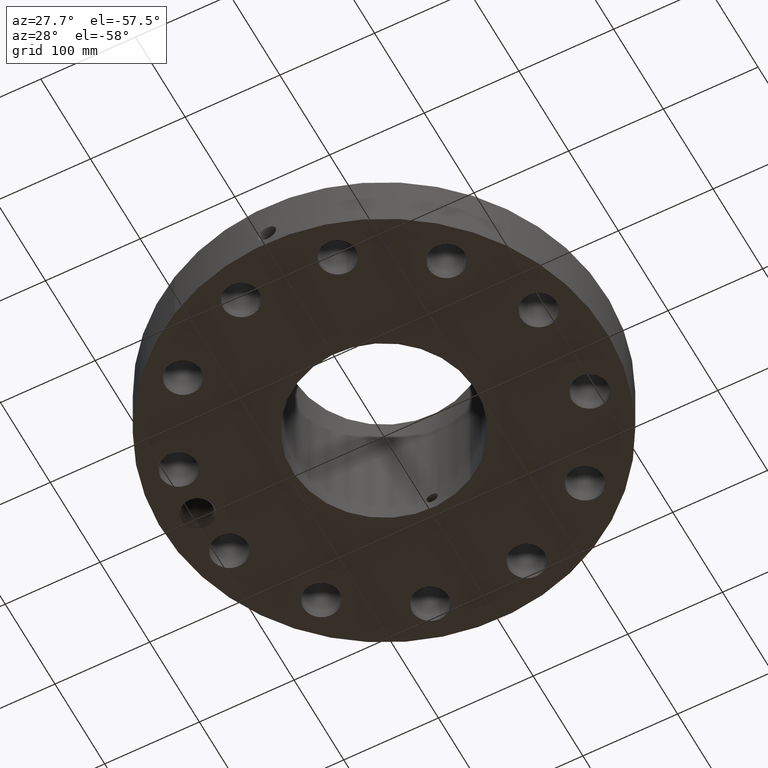
[diagram: clean part render]
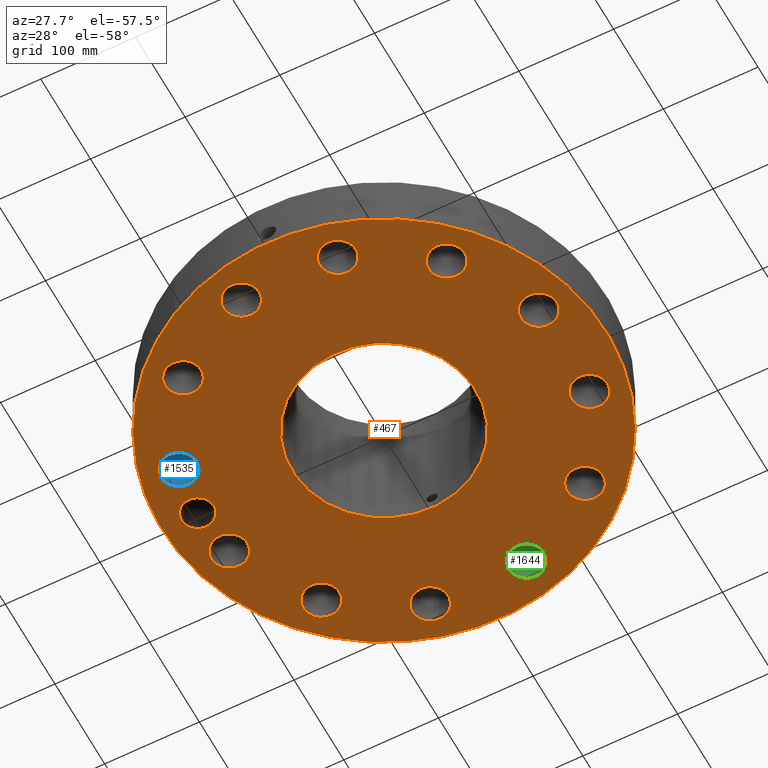
[diagram: same view with three faces highlighted in distinct colors, each labeled with its STEP entity id]
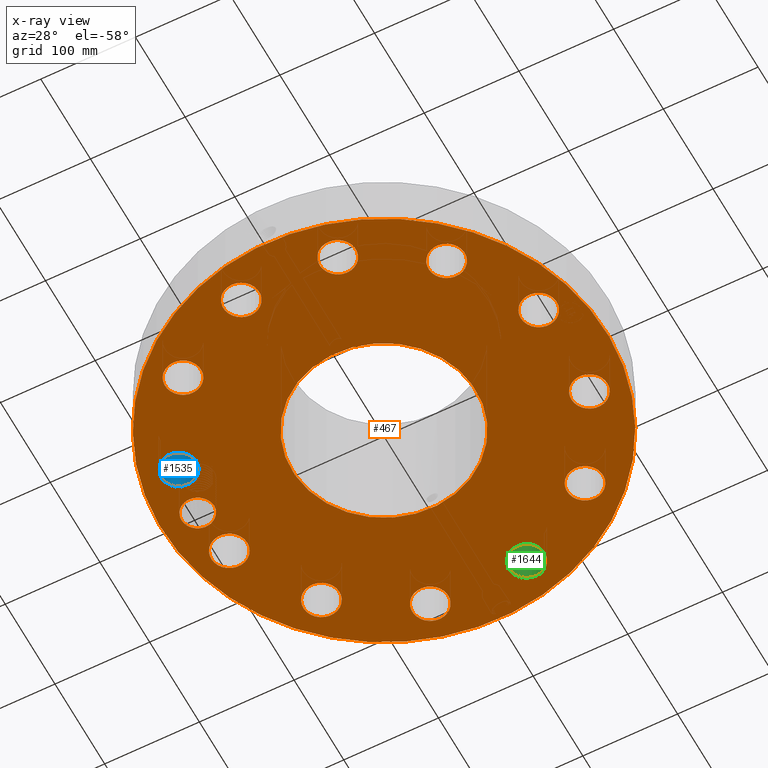
[diagram: x-ray of the same camera — body ghosted, the three highlighted faces saturated]
A machine part, auxiliary view with three faces highlighted in distinct colors.
The next image is the same camera in x-ray (body ghosted, the three faces saturated) — at least one of them is partly hidden behind the body in this view.
Their STEP definitions:

[orange] entity #467 — the highlighted planar face has unit normal (0, 0, -1).
#42=AXIS2_PLACEMENT_3D('Circle Axis2P3D',#40,#41,$) ;
#165=AXIS2_PLACEMENT_3D('Plane Axis2P3D',#162,#163,#164) ;
#169=AXIS2_PLACEMENT_3D('Circle Axis2P3D',#167,#168,$) ;
#178=AXIS2_PLACEMENT_3D('Circle Axis2P3D',#176,#177,$) ;
#187=AXIS2_PLACEMENT_3D('Circle Axis2P3D',#185,#186,$) ;
#235=AXIS2_PLACEMENT_3D('Circle Axis2P3D',#233,#234,$) ;
#244=AXIS2_PLACEMENT_3D('Circle Axis2P3D',#242,#243,$) ;
#253=AXIS2_PLACEMENT_3D('Circle Axis2P3D',#251,#252,$) ;
#262=AXIS2_PLACEMENT_3D('Circle Axis2P3D',#260,#261,$) ;
#271=AXIS2_PLACEMENT_3D('Circle Axis2P3D',#269,#270,$) ;
#280=AXIS2_PLACEMENT_3D('Circle Axis2P3D',#278,#279,$) ;
#289=AXIS2_PLACEMENT_3D('Circle Axis2P3D',#287,#288,$) ;
#298=AXIS2_PLACEMENT_3D('Circle Axis2P3D',#296,#297,$) ;
#307=AXIS2_PLACEMENT_3D('Circle Axis2P3D',#305,#306,$) ;
#316=AXIS2_PLACEMENT_3D('Circle Axis2P3D',#314,#315,$) ;
#325=AXIS2_PLACEMENT_3D('Circle Axis2P3D',#323,#324,$) ;
#334=AXIS2_PLACEMENT_3D('Circle Axis2P3D',#332,#333,$) ;
#343=AXIS2_PLACEMENT_3D('Circle Axis2P3D',#341,#342,$) ;
#352=AXIS2_PLACEMENT_3D('Circle Axis2P3D',#350,#351,$) ;
#361=AXIS2_PLACEMENT_3D('Circle Axis2P3D',#359,#360,$) ;
#370=AXIS2_PLACEMENT_3D('Circle Axis2P3D',#368,#369,$) ;
#379=AXIS2_PLACEMENT_3D('Circle Axis2P3D',#377,#378,$) ;
#388=AXIS2_PLACEMENT_3D('Circle Axis2P3D',#386,#387,$) ;
#397=AXIS2_PLACEMENT_3D('Circle Axis2P3D',#395,#396,$) ;
#406=AXIS2_PLACEMENT_3D('Circle Axis2P3D',#404,#405,$) ;
#415=AXIS2_PLACEMENT_3D('Circle Axis2P3D',#413,#414,$) ;
#424=AXIS2_PLACEMENT_3D('Circle Axis2P3D',#422,#423,$) ;
#433=AXIS2_PLACEMENT_3D('Circle Axis2P3D',#431,#432,$) ;
#442=AXIS2_PLACEMENT_3D('Circle Axis2P3D',#440,#441,$) ;
#451=AXIS2_PLACEMENT_3D('Circle Axis2P3D',#449,#450,$) ;
#460=AXIS2_PLACEMENT_3D('Circle Axis2P3D',#458,#459,$) ;
#40=CARTESIAN_POINT('Axis2P3D Location',(0.,0.,0.250000000001)) ;
#44=CARTESIAN_POINT('Vertex',(-4.43468623211,-8.11763869752,0.250000000001)) ;
#46=CARTESIAN_POINT('Vertex',(4.43468623211,8.11763869752,0.250000000001)) ;
#162=CARTESIAN_POINT('Axis2P3D Location',(0.,3.81250000002,0.250000000001)) ;
#167=CARTESIAN_POINT('Axis2P3D Location',(0.,0.,0.250000000001)) ;
#176=CARTESIAN_POINT('Axis2P3D Location',(-7.75000000003,5.59482469102E-016,0.250000000001)) ;
#180=CARTESIAN_POINT('Vertex',(-8.33745376696,0.320927455543,0.250000000001)) ;
#182=CARTESIAN_POINT('Vertex',(-7.25451620551,0.450102398757,0.250000000001)) ;
#185=CARTESIAN_POINT('Axis2P3D Location',(-7.75000000003,5.59482469102E-016,0.250000000001)) ;
#189=CARTESIAN_POINT('Vertex',(-7.23799837166,-0.431220004808,0.250000000001)) ;
#193=CARTESIAN_POINT('Control Point',(-7.0629754839,-2.07468947638E-005,0.250000000001)) ;
#194=CARTESIAN_POINT('Control Point',(-7.06534198668,-0.0645113013499,0.250000000001)) ;
#195=CARTESIAN_POINT('Control Point',(-7.07528094478,-0.128593476968,0.250000000001)) ;
#196=CARTESIAN_POINT('Control Point',(-7.09272137331,-0.191047595332,0.250000000001)) ;
#197=CARTESIAN_POINT('Control Point',(-7.12917142241,-0.279490456008,0.250000000001)) ;
#198=CARTESIAN_POINT('Control Point',(-7.17998374721,-0.359518001057,0.250000000001)) ;
#199=CARTESIAN_POINT('Control Point',(-7.19798053399,-0.38456504746,0.250000000001)) ;
#200=CARTESIAN_POINT('Control Point',(-7.21734968685,-0.408498034827,0.250000000001)) ;
#201=CARTESIAN_POINT('Control Point',(-7.23799837166,-0.431220004808,0.250000000001)) ;
#202=CARTESIAN_POINT('Vertex',(-7.0629754839,-2.07468947634E-005,0.250000000001)) ;
#206=CARTESIAN_POINT('Control Point',(-7.0626220832,0.0129557094812,0.250000000001)) ;
#207=CARTESIAN_POINT('Control Point',(-7.06266824443,0.0103594296756,0.250000000001)) ;
#208=CARTESIAN_POINT('Control Point',(-7.06272666754,0.00776357627205,0.250000000001)) ;
#209=CARTESIAN_POINT('Control Point',(-7.06279735309,0.00516812512151,0.250000000001)) ;
#210=CARTESIAN_POINT('Control Point',(-7.06288029232,0.00257335876411,0.250000000001)) ;
#211=CARTESIAN_POINT('Control Point',(-7.0629754839,-2.07468947638E-005,0.250000000001)) ;
#212=CARTESIAN_POINT('Vertex',(-7.0626220832,0.0129557094812,0.250000000001)) ;
#216=CARTESIAN_POINT('Control Point',(-7.0626220832,0.0129557094812,0.250000000001)) ;
#217=CARTESIAN_POINT('Control Point',(-7.06620016695,0.077395398012,0.250000000001)) ;
#218=CARTESIAN_POINT('Control Point',(-7.07733742913,0.141283565138,0.250000000001)) ;
#219=CARTESIAN_POINT('Control Point',(-7.09595064586,0.203427894509,0.250000000001)) ;
#220=CARTESIAN_POINT('Control Point',(-7.13507873247,0.29355834408,0.250000000001)) ;
#221=CARTESIAN_POINT('Control Point',(-7.18921326546,0.374580219394,0.250000000001)) ;
#222=CARTESIAN_POINT('Control Point',(-7.2094508816,0.401144477602,0.250000000001)) ;
#223=CARTESIAN_POINT('Control Point',(-7.23125899334,0.426358633925,0.250000000001)) ;
#224=CARTESIAN_POINT('Control Point',(-7.25451620551,0.450102398757,0.250000000001)) ;
#233=CARTESIAN_POINT('Axis2P3D Location',(7.48592515377,-2.00584759955,0.250000000001)) ;
#237=CARTESIAN_POINT('Vertex',(8.14411207519,-2.36541675351,0.250000000001)) ;
#239=CARTESIAN_POINT('Vertex',(6.82773823235,-1.6462784456,0.250000000001)) ;
#242=CARTESIAN_POINT('Axis2P3D Location',(7.48592515377,-2.00584759955,0.250000000001)) ;
#251=CARTESIAN_POINT('Axis2P3D Location',(0.,0.,0.250000000001)) ;
#255=CARTESIAN_POINT('Vertex',(1.82780986594,3.34578351722,0.250000000001)) ;
#257=CARTESIAN_POINT('Vertex',(-1.82780986594,-3.34578351722,0.250000000001)) ;
#260=CARTESIAN_POINT('Axis2P3D Location',(0.,0.,0.250000000001)) ;
#269=CARTESIAN_POINT('Axis2P3D Location',(5.48007755422,-5.48007755422,0.250000000001)) ;
#273=CARTESIAN_POINT('Vertex',(5.08985553681,-4.83958807177,0.250000000001)) ;
#275=CARTESIAN_POINT('Vertex',(5.87029957163,-6.12056703667,0.250000000001)) ;
#278=CARTESIAN_POINT('Axis2P3D Location',(5.48007755422,-5.48007755422,0.250000000001)) ;
#287=CARTESIAN_POINT('Axis2P3D Location',(2.00584759955,-7.48592515377,0.250000000001)) ;
#291=CARTESIAN_POINT('Vertex',(1.98815016058,-6.7361339824,0.250000000001)) ;
#293=CARTESIAN_POINT('Vertex',(2.02354503852,-8.23571632514,0.250000000001)) ;
#296=CARTESIAN_POINT('Axis2P3D Location',(2.00584759955,-7.48592515377,0.250000000001)) ;
#305=CARTESIAN_POINT('Axis2P3D Location',(-2.00584759955,-7.48592515377,0.250000000001)) ;
#309=CARTESIAN_POINT('Vertex',(-1.6462784456,-6.82773823235,0.250000000001)) ;
#311=CARTESIAN_POINT('Vertex',(-2.36541675351,-8.14411207519,0.250000000001)) ;
#314=CARTESIAN_POINT('Axis2P3D Location',(-2.00584759955,-7.48592515377,0.250000000001)) ;
#323=CARTESIAN_POINT('Axis2P3D Location',(-5.48007755422,-5.48007755422,0.250000000001)) ;
#327=CARTESIAN_POINT('Vertex',(-4.83958807177,-5.08985553681,0.250000000001)) ;
#329=CARTESIAN_POINT('Vertex',(-6.12056703667,-5.87029957163,0.250000000001)) ;
#332=CARTESIAN_POINT('Axis2P3D Location',(-5.48007755422,-5.48007755422,0.250000000001)) ;
#341=CARTESIAN_POINT('Axis2P3D Location',(-7.48592515377,-2.00584759955,0.250000000001)) ;
#345=CARTESIAN_POINT('Vertex',(-6.7361339824,-1.98815016058,0.250000000001)) ;
#347=CARTESIAN_POINT('Vertex',(-8.23571632514,-2.02354503852,0.250000000001)) ;
#350=CARTESIAN_POINT('Axis2P3D Location',(-7.48592515377,-2.00584759955,0.250000000001)) ;
#359=CARTESIAN_POINT('Axis2P3D Location',(-7.48592515377,2.00584759955,0.250000000001)) ;
#363=CARTESIAN_POINT('Vertex',(-6.82773823235,1.6462784456,0.250000000001)) ;
#365=CARTESIAN_POINT('Vertex',(-8.14411207519,2.36541675351,0.250000000001)) ;
#368=CARTESIAN_POINT('Axis2P3D Location',(-7.48592515377,2.00584759955,0.250000000001)) ;
#377=CARTESIAN_POINT('Axis2P3D Location',(-5.48007755422,5.48007755422,0.250000000001)) ;
#381=CARTESIAN_POINT('Vertex',(-5.08985553681,4.83958807177,0.250000000001)) ;
#383=CARTESIAN_POINT('Vertex',(-5.87029957163,6.12056703667,0.250000000001)) ;
#386=CARTESIAN_POINT('Axis2P3D Location',(-5.48007755422,5.48007755422,0.250000000001)) ;
#395=CARTESIAN_POINT('Axis2P3D Location',(-2.00584759955,7.48592515377,0.250000000001)) ;
#399=CARTESIAN_POINT('Vertex',(-1.98815016058,6.7361339824,0.250000000001)) ;
#401=CARTESIAN_POINT('Vertex',(-2.02354503852,8.23571632514,0.250000000001)) ;
#404=CARTESIAN_POINT('Axis2P3D Location',(-2.00584759955,7.48592515377,0.250000000001)) ;
#413=CARTESIAN_POINT('Axis2P3D Location',(2.00584759955,7.48592515377,0.250000000001)) ;
#417=CARTESIAN_POINT('Vertex',(1.6462784456,6.82773823235,0.250000000001)) ;
#419=CARTESIAN_POINT('Vertex',(2.36541675351,8.14411207519,0.250000000001)) ;
#422=CARTESIAN_POINT('Axis2P3D Location',(2.00584759955,7.48592515377,0.250000000001)) ;
#431=CARTESIAN_POINT('Axis2P3D Location',(5.48007755422,5.48007755422,0.250000000001)) ;
#435=CARTESIAN_POINT('Vertex',(4.83958807177,5.08985553681,0.250000000001)) ;
#437=CARTESIAN_POINT('Vertex',(6.12056703667,5.87029957163,0.250000000001)) ;
#440=CARTESIAN_POINT('Axis2P3D Location',(5.48007755422,5.48007755422,0.250000000001)) ;
#449=CARTESIAN_POINT('Axis2P3D Location',(7.48592515377,2.00584759955,0.250000000001)) ;
#453=CARTESIAN_POINT('Vertex',(6.7361339824,1.98815016058,0.250000000001)) ;
#455=CARTESIAN_POINT('Vertex',(8.23571632514,2.02354503852,0.250000000001)) ;
#458=CARTESIAN_POINT('Axis2P3D Location',(7.48592515377,2.00584759955,0.250000000001)) ;
#41=DIRECTION('Axis2P3D Direction',(0.,0.,-0.0393700787402)) ;
#163=DIRECTION('Axis2P3D Direction',(0.,0.,-0.0393700787402)) ;
#164=DIRECTION('Axis2P3D XDirection',(0.0393700787402,0.,0.)) ;
#168=DIRECTION('Axis2P3D Direction',(0.,0.,-0.0393700787402)) ;
#177=DIRECTION('Axis2P3D Direction',(0.,0.,-0.0393700787402)) ;
#186=DIRECTION('Axis2P3D Direction',(0.,0.,-0.0393700787402)) ;
#234=DIRECTION('Axis2P3D Direction',(0.,0.,-0.0393700787402)) ;
#243=DIRECTION('Axis2P3D Direction',(0.,0.,-0.0393700787402)) ;
#252=DIRECTION('Axis2P3D Direction',(0.,0.,-0.0393700787402)) ;
#261=DIRECTION('Axis2P3D Direction',(0.,0.,-0.0393700787402)) ;
#270=DIRECTION('Axis2P3D Direction',(0.,0.,-0.0393700787402)) ;
#279=DIRECTION('Axis2P3D Direction',(0.,0.,-0.0393700787402)) ;
#288=DIRECTION('Axis2P3D Direction',(0.,0.,-0.0393700787402)) ;
#297=DIRECTION('Axis2P3D Direction',(0.,0.,-0.0393700787402)) ;
#306=DIRECTION('Axis2P3D Direction',(0.,0.,-0.0393700787402)) ;
#315=DIRECTION('Axis2P3D Direction',(0.,0.,-0.0393700787402)) ;
#324=DIRECTION('Axis2P3D Direction',(0.,0.,-0.0393700787402)) ;
#333=DIRECTION('Axis2P3D Direction',(0.,0.,-0.0393700787402)) ;
#342=DIRECTION('Axis2P3D Direction',(0.,0.,-0.0393700787402)) ;
#351=DIRECTION('Axis2P3D Direction',(0.,0.,-0.0393700787402)) ;
#360=DIRECTION('Axis2P3D Direction',(0.,0.,-0.0393700787402)) ;
#369=DIRECTION('Axis2P3D Direction',(0.,0.,-0.0393700787402)) ;
#378=DIRECTION('Axis2P3D Direction',(0.,0.,-0.0393700787402)) ;
#387=DIRECTION('Axis2P3D Direction',(0.,0.,-0.0393700787402)) ;
#396=DIRECTION('Axis2P3D Direction',(0.,0.,-0.0393700787402)) ;
#405=DIRECTION('Axis2P3D Direction',(0.,0.,-0.0393700787402)) ;
#414=DIRECTION('Axis2P3D Direction',(0.,0.,-0.0393700787402)) ;
#423=DIRECTION('Axis2P3D Direction',(0.,0.,-0.0393700787402)) ;
#432=DIRECTION('Axis2P3D Direction',(0.,0.,-0.0393700787402)) ;
#441=DIRECTION('Axis2P3D Direction',(0.,0.,-0.0393700787402)) ;
#450=DIRECTION('Axis2P3D Direction',(0.,0.,-0.0393700787402)) ;
#459=DIRECTION('Axis2P3D Direction',(0.,0.,-0.0393700787402)) ;
#173=ORIENTED_EDGE('',*,*,#48,.T.) ;
#174=ORIENTED_EDGE('',*,*,#171,.T.) ;
#227=ORIENTED_EDGE('',*,*,#184,.F.) ;
#228=ORIENTED_EDGE('',*,*,#191,.F.) ;
#229=ORIENTED_EDGE('',*,*,#204,.F.) ;
#230=ORIENTED_EDGE('',*,*,#214,.F.) ;
#231=ORIENTED_EDGE('',*,*,#225,.T.) ;
#248=ORIENTED_EDGE('',*,*,#241,.F.) ;
#249=ORIENTED_EDGE('',*,*,#246,.F.) ;
#266=ORIENTED_EDGE('',*,*,#259,.F.) ;
#267=ORIENTED_EDGE('',*,*,#264,.F.) ;
#284=ORIENTED_EDGE('',*,*,#277,.F.) ;
#285=ORIENTED_EDGE('',*,*,#282,.F.) ;
#302=ORIENTED_EDGE('',*,*,#295,.F.) ;
#303=ORIENTED_EDGE('',*,*,#300,.F.) ;
#320=ORIENTED_EDGE('',*,*,#313,.F.) ;
#321=ORIENTED_EDGE('',*,*,#318,.F.) ;
#338=ORIENTED_EDGE('',*,*,#331,.F.) ;
#339=ORIENTED_EDGE('',*,*,#336,.F.) ;
#356=ORIENTED_EDGE('',*,*,#349,.F.) ;
#357=ORIENTED_EDGE('',*,*,#354,.F.) ;
#374=ORIENTED_EDGE('',*,*,#367,.F.) ;
#375=ORIENTED_EDGE('',*,*,#372,.F.) ;
#392=ORIENTED_EDGE('',*,*,#385,.F.) ;
#393=ORIENTED_EDGE('',*,*,#390,.F.) ;
#410=ORIENTED_EDGE('',*,*,#403,.F.) ;
#411=ORIENTED_EDGE('',*,*,#408,.F.) ;
#428=ORIENTED_EDGE('',*,*,#421,.F.) ;
#429=ORIENTED_EDGE('',*,*,#426,.F.) ;
#446=ORIENTED_EDGE('',*,*,#439,.F.) ;
#447=ORIENTED_EDGE('',*,*,#444,.F.) ;
#464=ORIENTED_EDGE('',*,*,#457,.F.) ;
#465=ORIENTED_EDGE('',*,*,#462,.F.) ;
#232=FACE_BOUND('',#226,.T.) ;
#250=FACE_BOUND('',#247,.T.) ;
#268=FACE_BOUND('',#265,.T.) ;
#286=FACE_BOUND('',#283,.T.) ;
#304=FACE_BOUND('',#301,.T.) ;
#322=FACE_BOUND('',#319,.T.) ;
#340=FACE_BOUND('',#337,.T.) ;
#358=FACE_BOUND('',#355,.T.) ;
#376=FACE_BOUND('',#373,.T.) ;
#394=FACE_BOUND('',#391,.T.) ;
#412=FACE_BOUND('',#409,.T.) ;
#430=FACE_BOUND('',#427,.T.) ;
#448=FACE_BOUND('',#445,.T.) ;
#466=FACE_BOUND('',#463,.T.) ;
#467=ADVANCED_FACE('PartBody',(#175,#232,#250,#268,#286,#304,#322,#340,#358,#376,#394,#412,#430,#448,#466),#166,.T.) ;
#192=B_SPLINE_CURVE_WITH_KNOTS('',5,(#193,#194,#195,#196,#197,#198,#199,#200,#201),.UNSPECIFIED.,.F.,.U.,(6,3,6),(0.,11.2765402129,16.7198826006),.UNSPECIFIED.) ;
#205=B_SPLINE_CURVE_WITH_KNOTS('',5,(#206,#207,#208,#209,#210,#211),.UNSPECIFIED.,.F.,.U.,(6,6),(0.,0.453594127476),.UNSPECIFIED.) ;
#215=B_SPLINE_CURVE_WITH_KNOTS('',5,(#216,#217,#218,#219,#220,#221,#222,#223,#224),.UNSPECIFIED.,.F.,.U.,(6,3,6),(0.,11.2737706656,17.1559475641),.UNSPECIFIED.) ;
#43=CIRCLE('generated circle',#42,9.25000000004) ;
#170=CIRCLE('generated circle',#169,9.25000000004) ;
#179=CIRCLE('generated circle',#178,0.669400000003) ;
#188=CIRCLE('generated circle',#187,0.669400000003) ;
#236=CIRCLE('generated circle',#235,0.750000000003) ;
#245=CIRCLE('generated circle',#244,0.750000000003) ;
#254=CIRCLE('generated circle',#253,3.81250000002) ;
#263=CIRCLE('generated circle',#262,3.81250000002) ;
#272=CIRCLE('generated circle',#271,0.750000000003) ;
#281=CIRCLE('generated circle',#280,0.750000000003) ;
#290=CIRCLE('generated circle',#289,0.750000000003) ;
#299=CIRCLE('generated circle',#298,0.750000000003) ;
#308=CIRCLE('generated circle',#307,0.750000000003) ;
#317=CIRCLE('generated circle',#316,0.750000000003) ;
#326=CIRCLE('generated circle',#325,0.750000000003) ;
#335=CIRCLE('generated circle',#334,0.750000000003) ;
#344=CIRCLE('generated circle',#343,0.750000000003) ;
#353=CIRCLE('generated circle',#352,0.750000000003) ;
#362=CIRCLE('generated circle',#361,0.750000000003) ;
#371=CIRCLE('generated circle',#370,0.750000000003) ;
#380=CIRCLE('generated circle',#379,0.750000000003) ;
#389=CIRCLE('generated circle',#388,0.750000000003) ;
#398=CIRCLE('generated circle',#397,0.750000000003) ;
#407=CIRCLE('generated circle',#406,0.750000000003) ;
#416=CIRCLE('generated circle',#415,0.750000000003) ;
#425=CIRCLE('generated circle',#424,0.750000000003) ;
#434=CIRCLE('generated circle',#433,0.750000000003) ;
#443=CIRCLE('generated circle',#442,0.750000000003) ;
#452=CIRCLE('generated circle',#451,0.750000000003) ;
#461=CIRCLE('generated circle',#460,0.750000000003) ;
#48=EDGE_CURVE('',#45,#47,#43,.T.) ;
#171=EDGE_CURVE('',#47,#45,#170,.T.) ;
#184=EDGE_CURVE('',#181,#183,#179,.T.) ;
#191=EDGE_CURVE('',#190,#181,#188,.T.) ;
#204=EDGE_CURVE('',#203,#190,#192,.T.) ;
#214=EDGE_CURVE('',#213,#203,#205,.T.) ;
#225=EDGE_CURVE('',#213,#183,#215,.T.) ;
#241=EDGE_CURVE('',#238,#240,#236,.T.) ;
#246=EDGE_CURVE('',#240,#238,#245,.T.) ;
#259=EDGE_CURVE('',#256,#258,#254,.T.) ;
#264=EDGE_CURVE('',#258,#256,#263,.T.) ;
#277=EDGE_CURVE('',#274,#276,#272,.T.) ;
#282=EDGE_CURVE('',#276,#274,#281,.T.) ;
#295=EDGE_CURVE('',#292,#294,#290,.T.) ;
#300=EDGE_CURVE('',#294,#292,#299,.T.) ;
#313=EDGE_CURVE('',#310,#312,#308,.T.) ;
#318=EDGE_CURVE('',#312,#310,#317,.T.) ;
#331=EDGE_CURVE('',#328,#330,#326,.T.) ;
#336=EDGE_CURVE('',#330,#328,#335,.T.) ;
#349=EDGE_CURVE('',#346,#348,#344,.T.) ;
#354=EDGE_CURVE('',#348,#346,#353,.T.) ;
#367=EDGE_CURVE('',#364,#366,#362,.T.) ;
#372=EDGE_CURVE('',#366,#364,#371,.T.) ;
#385=EDGE_CURVE('',#382,#384,#380,.T.) ;
#390=EDGE_CURVE('',#384,#382,#389,.T.) ;
#403=EDGE_CURVE('',#400,#402,#398,.T.) ;
#408=EDGE_CURVE('',#402,#400,#407,.T.) ;
#421=EDGE_CURVE('',#418,#420,#416,.T.) ;
#426=EDGE_CURVE('',#420,#418,#425,.T.) ;
#439=EDGE_CURVE('',#436,#438,#434,.T.) ;
#444=EDGE_CURVE('',#438,#436,#443,.T.) ;
#457=EDGE_CURVE('',#454,#456,#452,.T.) ;
#462=EDGE_CURVE('',#456,#454,#461,.T.) ;
#172=EDGE_LOOP('',(#173,#174)) ;
#226=EDGE_LOOP('',(#227,#228,#229,#230,#231)) ;
#247=EDGE_LOOP('',(#248,#249)) ;
#265=EDGE_LOOP('',(#266,#267)) ;
#283=EDGE_LOOP('',(#284,#285)) ;
#301=EDGE_LOOP('',(#302,#303)) ;
#319=EDGE_LOOP('',(#320,#321)) ;
#337=EDGE_LOOP('',(#338,#339)) ;
#355=EDGE_LOOP('',(#356,#357)) ;
#373=EDGE_LOOP('',(#374,#375)) ;
#391=EDGE_LOOP('',(#392,#393)) ;
#409=EDGE_LOOP('',(#410,#411)) ;
#427=EDGE_LOOP('',(#428,#429)) ;
#445=EDGE_LOOP('',(#446,#447)) ;
#463=EDGE_LOOP('',(#464,#465)) ;
#175=FACE_OUTER_BOUND('',#172,.T.) ;
#166=PLANE('',#165) ;
#45=VERTEX_POINT('',#44) ;
#47=VERTEX_POINT('',#46) ;
#181=VERTEX_POINT('',#180) ;
#183=VERTEX_POINT('',#182) ;
#190=VERTEX_POINT('',#189) ;
#203=VERTEX_POINT('',#202) ;
#213=VERTEX_POINT('',#212) ;
#238=VERTEX_POINT('',#237) ;
#240=VERTEX_POINT('',#239) ;
#256=VERTEX_POINT('',#255) ;
#258=VERTEX_POINT('',#257) ;
#274=VERTEX_POINT('',#273) ;
#276=VERTEX_POINT('',#275) ;
#292=VERTEX_POINT('',#291) ;
#294=VERTEX_POINT('',#293) ;
#310=VERTEX_POINT('',#309) ;
#312=VERTEX_POINT('',#311) ;
#328=VERTEX_POINT('',#327) ;
#330=VERTEX_POINT('',#329) ;
#346=VERTEX_POINT('',#345) ;
#348=VERTEX_POINT('',#347) ;
#364=VERTEX_POINT('',#363) ;
#366=VERTEX_POINT('',#365) ;
#382=VERTEX_POINT('',#381) ;
#384=VERTEX_POINT('',#383) ;
#400=VERTEX_POINT('',#399) ;
#402=VERTEX_POINT('',#401) ;
#418=VERTEX_POINT('',#417) ;
#420=VERTEX_POINT('',#419) ;
#436=VERTEX_POINT('',#435) ;
#438=VERTEX_POINT('',#437) ;
#454=VERTEX_POINT('',#453) ;
#456=VERTEX_POINT('',#455) ;

[blue] entity #1535 — the highlighted cylindrical surface (edge-blend (fillet) strip) has radius 19.05 mm, axis along (-0, 0, -1).
#352=AXIS2_PLACEMENT_3D('Circle Axis2P3D',#350,#351,$) ;
#732=AXIS2_PLACEMENT_3D('Circle Axis2P3D',#730,#731,$) ;
#1510=AXIS2_PLACEMENT_3D('Cylinder Axis2P3D',#1507,#1508,#1509) ;
#345=CARTESIAN_POINT('Vertex',(-6.7361339824,-1.98815016058,0.250000000001)) ;
#347=CARTESIAN_POINT('Vertex',(-8.23571632514,-2.02354503852,0.250000000001)) ;
#350=CARTESIAN_POINT('Axis2P3D Location',(-7.48592515377,-2.00584759955,0.250000000001)) ;
#730=CARTESIAN_POINT('Axis2P3D Location',(-7.48592515377,-2.00584759955,2.75000000001)) ;
#734=CARTESIAN_POINT('Vertex',(-8.23571632514,-2.02354503852,2.75000000001)) ;
#736=CARTESIAN_POINT('Vertex',(-6.7361339824,-1.98815016058,2.75000000001)) ;
#1507=CARTESIAN_POINT('Axis2P3D Location',(-7.48592515377,-2.00584759955,2.74606299214)) ;
#1512=CARTESIAN_POINT('Line Origine',(-6.7361339824,-1.98815016058,1.50000000001)) ;
#1517=CARTESIAN_POINT('Line Origine',(-8.23571632514,-2.02354503852,1.50000000001)) ;
#351=DIRECTION('Axis2P3D Direction',(0.,0.,-0.0393700787402)) ;
#731=DIRECTION('Axis2P3D Direction',(0.,0.,-0.0393700787402)) ;
#1508=DIRECTION('Axis2P3D Direction',(-0.,0.,-0.0393700787402)) ;
#1509=DIRECTION('Axis2P3D XDirection',(-0.039359116607,-0.000928999420902,0.)) ;
#1513=DIRECTION('Vector Direction',(0.,0.,-0.0393700787402)) ;
#1518=DIRECTION('Vector Direction',(0.,0.,-0.0393700787402)) ;
#1514=VECTOR('Line Direction',#1513,0.0393700787402) ;
#1519=VECTOR('Line Direction',#1518,0.0393700787402) ;
#1530=ORIENTED_EDGE('',*,*,#1521,.F.) ;
#1531=ORIENTED_EDGE('',*,*,#354,.T.) ;
#1532=ORIENTED_EDGE('',*,*,#1516,.T.) ;
#1533=ORIENTED_EDGE('',*,*,#738,.F.) ;
#1535=ADVANCED_FACE('PartBody',(#1534),#1511,.F.) ;
#353=CIRCLE('generated circle',#352,0.750000000003) ;
#733=CIRCLE('generated circle',#732,0.750000000003) ;
#1511=CYLINDRICAL_SURFACE('generated cylinder',#1510,0.750000000003) ;
#354=EDGE_CURVE('',#348,#346,#353,.T.) ;
#738=EDGE_CURVE('',#735,#737,#733,.T.) ;
#1516=EDGE_CURVE('',#346,#737,#1515,.F.) ;
#1521=EDGE_CURVE('',#348,#735,#1520,.F.) ;
#1529=EDGE_LOOP('',(#1530,#1531,#1532,#1533)) ;
#1534=FACE_OUTER_BOUND('',#1529,.T.) ;
#1515=LINE('Line',#1512,#1514) ;
#1520=LINE('Line',#1517,#1519) ;
#346=VERTEX_POINT('',#345) ;
#348=VERTEX_POINT('',#347) ;
#735=VERTEX_POINT('',#734) ;
#737=VERTEX_POINT('',#736) ;

[green] entity #1644 — the highlighted cylindrical surface (edge-blend (fillet) strip) has radius 19.05 mm, axis along (0, 0, -1).
#415=AXIS2_PLACEMENT_3D('Circle Axis2P3D',#413,#414,$) ;
#813=AXIS2_PLACEMENT_3D('Circle Axis2P3D',#811,#812,$) ;
#1626=AXIS2_PLACEMENT_3D('Cylinder Axis2P3D',#1623,#1624,#1625) ;
#413=CARTESIAN_POINT('Axis2P3D Location',(2.00584759955,7.48592515377,0.250000000001)) ;
#417=CARTESIAN_POINT('Vertex',(1.6462784456,6.82773823235,0.250000000001)) ;
#419=CARTESIAN_POINT('Vertex',(2.36541675351,8.14411207519,0.250000000001)) ;
#806=CARTESIAN_POINT('Vertex',(2.36541675351,8.14411207519,2.75000000001)) ;
#808=CARTESIAN_POINT('Vertex',(1.6462784456,6.82773823235,2.75000000001)) ;
#811=CARTESIAN_POINT('Axis2P3D Location',(2.00584759955,7.48592515377,2.75000000001)) ;
#1623=CARTESIAN_POINT('Axis2P3D Location',(2.00584759955,7.48592515377,2.74606299214)) ;
#1628=CARTESIAN_POINT('Line Origine',(1.6462784456,6.82773823235,1.50000000001)) ;
#1633=CARTESIAN_POINT('Line Origine',(2.36541675351,8.14411207519,1.50000000001)) ;
#414=DIRECTION('Axis2P3D Direction',(0.,0.,-0.0393700787402)) ;
#812=DIRECTION('Axis2P3D Direction',(0.,0.,-0.0393700787402)) ;
#1624=DIRECTION('Axis2P3D Direction',(0.,0.,-0.0393700787402)) ;
#1625=DIRECTION('Axis2P3D XDirection',(0.0188750212049,0.0345504945626,0.)) ;
#1629=DIRECTION('Vector Direction',(0.,0.,-0.0393700787402)) ;
#1634=DIRECTION('Vector Direction',(0.,0.,-0.0393700787402)) ;
#1630=VECTOR('Line Direction',#1629,0.0393700787402) ;
#1635=VECTOR('Line Direction',#1634,0.0393700787402) ;
#1639=ORIENTED_EDGE('',*,*,#1632,.F.) ;
#1640=ORIENTED_EDGE('',*,*,#421,.T.) ;
#1641=ORIENTED_EDGE('',*,*,#1637,.T.) ;
#1642=ORIENTED_EDGE('',*,*,#815,.F.) ;
#1644=ADVANCED_FACE('PartBody',(#1643),#1627,.F.) ;
#416=CIRCLE('generated circle',#415,0.750000000003) ;
#814=CIRCLE('generated circle',#813,0.750000000003) ;
#1627=CYLINDRICAL_SURFACE('generated cylinder',#1626,0.750000000003) ;
#421=EDGE_CURVE('',#418,#420,#416,.T.) ;
#815=EDGE_CURVE('',#809,#807,#814,.T.) ;
#1632=EDGE_CURVE('',#418,#809,#1631,.F.) ;
#1637=EDGE_CURVE('',#420,#807,#1636,.F.) ;
#1638=EDGE_LOOP('',(#1639,#1640,#1641,#1642)) ;
#1643=FACE_OUTER_BOUND('',#1638,.T.) ;
#1631=LINE('Line',#1628,#1630) ;
#1636=LINE('Line',#1633,#1635) ;
#418=VERTEX_POINT('',#417) ;
#420=VERTEX_POINT('',#419) ;
#807=VERTEX_POINT('',#806) ;
#809=VERTEX_POINT('',#808) ;